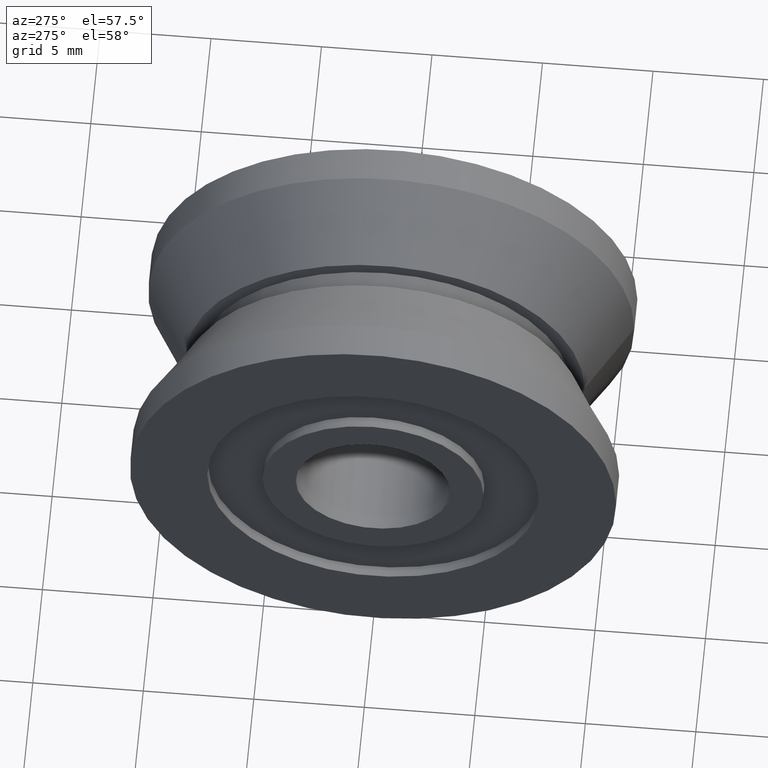
[diagram: clean part render]
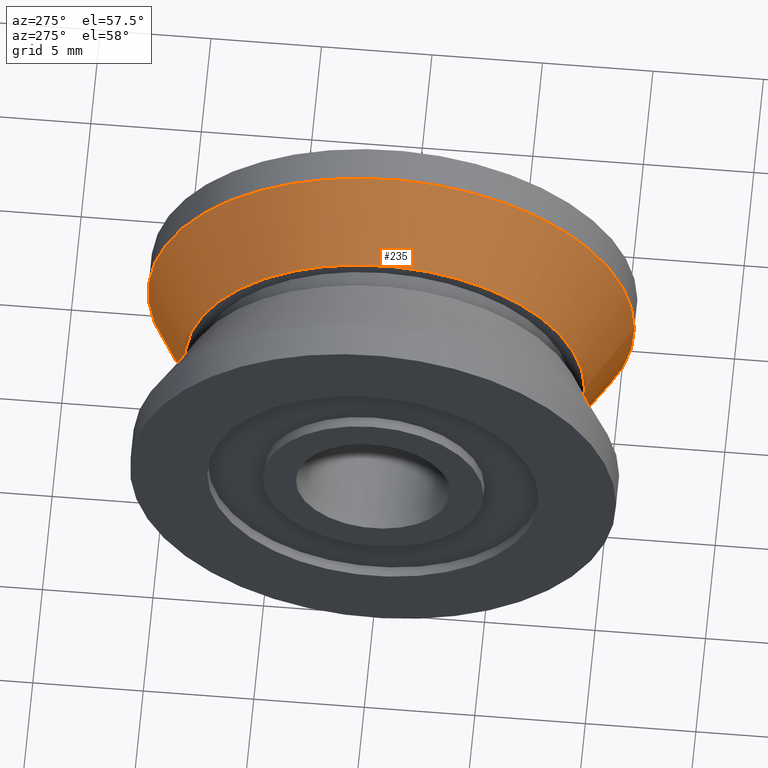
[diagram: same view with one face highlighted and labeled with its STEP entity id]
A machine part, auxiliary view. The second image highlights one B-rep face of the part: STEP entity #235.
In plain terms, the highlighted conical surface has half-angle 30 deg.
Its self-contained STEP definition (entity closure, byte-faithful):
#16=CONICAL_SURFACE('',#287,10.022019978079,0.523598775598295);
#22=LINE('',#427,#32);
#32=VECTOR('',#355,10.022019978079);
#63=FACE_OUTER_BOUND('',#86,.T.);
#86=EDGE_LOOP('',(#191,#192,#193,#194));
#107=CIRCLE('',#286,9.04403995615804);
#108=CIRCLE('',#288,11.);
#125=VERTEX_POINT('',#422);
#126=VERTEX_POINT('',#425);
#148=EDGE_CURVE('',#125,#125,#107,.T.);
#149=EDGE_CURVE('',#126,#126,#108,.T.);
#150=EDGE_CURVE('',#126,#125,#22,.T.);
#191=ORIENTED_EDGE('',*,*,#149,.F.);
#192=ORIENTED_EDGE('',*,*,#150,.T.);
#193=ORIENTED_EDGE('',*,*,#148,.T.);
#194=ORIENTED_EDGE('',*,*,#150,.F.);
#235=ADVANCED_FACE('',(#63),#16,.T.);
#286=AXIS2_PLACEMENT_3D('',#423,#349,#350);
#287=AXIS2_PLACEMENT_3D('',#424,#351,#352);
#288=AXIS2_PLACEMENT_3D('',#426,#353,#354);
#349=DIRECTION('center_axis',(1.,0.,0.));
#350=DIRECTION('ref_axis',(0.,1.,0.));
#351=DIRECTION('center_axis',(1.,0.,0.));
#352=DIRECTION('ref_axis',(0.,1.,0.));
#353=DIRECTION('center_axis',(1.,0.,0.));
#354=DIRECTION('ref_axis',(0.,1.,0.));
#355=DIRECTION('',(-0.866025403784441,0.499999999999997,6.12323399573673E-17));
#422=CARTESIAN_POINT('',(0.55,-9.04403995615804,-1.10757545836697E-15));
#423=CARTESIAN_POINT('Origin',(0.55,0.,0.));
#424=CARTESIAN_POINT('Origin',(2.24391108675448,0.,0.));
#425=CARTESIAN_POINT('',(3.93782217350896,-11.,-1.34711147906209E-15));
#426=CARTESIAN_POINT('Origin',(3.93782217350896,0.,0.));
#427=CARTESIAN_POINT('',(2.24391108675448,-10.022019978079,-1.22734346871453E-15));